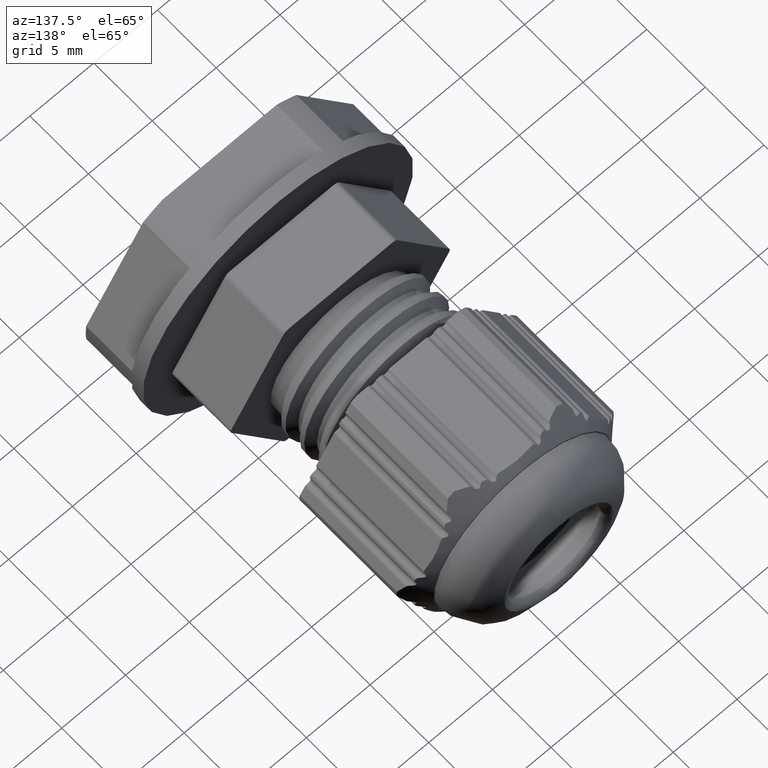
[diagram: clean part render]
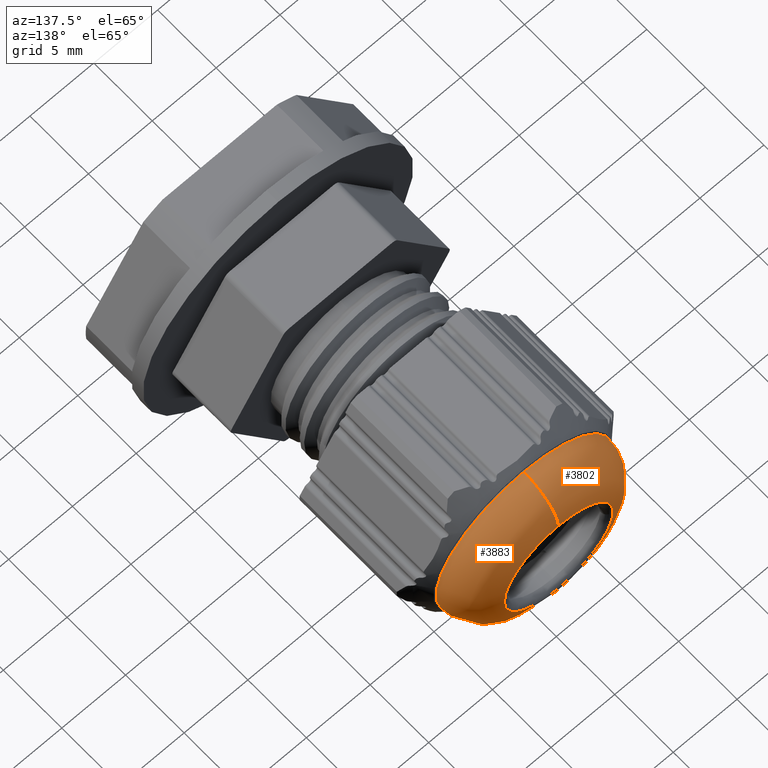
[diagram: same view with one multi-face feature highlighted, each face labeled with its STEP entity id]
A machine part, auxiliary view. The highlighted faces form ONE feature: a constant-radius fillet chain: 2 tangent blend faces with common blend radius 3 mm. The faces share edges in the B-rep.
Their STEP definitions:
[1] entity #3883 (Torus):
#235 = CIRCLE ( 'NONE', #257, 3.000000000000001800 ) ;
#242 = CIRCLE ( 'NONE', #272, 4.259999999999999800 ) ;
#251 = CIRCLE ( 'NONE', #289, 6.899999999999999500 ) ;
#255 = CIRCLE ( 'NONE', #270, 3.000000000000002700 ) ;
#257 = AXIS2_PLACEMENT_3D ( 'NONE', #5731, #5732, #5733 ) ;
#270 = AXIS2_PLACEMENT_3D ( 'NONE', #5757, #5758, #5793 ) ;
#272 = AXIS2_PLACEMENT_3D ( 'NONE', #5850, #5852, #5868 ) ;
#289 = AXIS2_PLACEMENT_3D ( 'NONE', #5933, #5901, #5931 ) ;
#328 = CIRCLE ( 'NONE', #335, 4.259999999999999800 ) ;
#335 = AXIS2_PLACEMENT_3D ( 'NONE', #5995, #5986, #6017 ) ;
#2836 = CARTESIAN_POINT ( 'NONE',  ( 4.260000000000008700, 15.21172793851808600, 5.216995364367735300E-016 ) ) ;
#2852 = CARTESIAN_POINT ( 'NONE',  ( 4.328130666425425800E-016, 15.21172793851808800, -4.259999999999999800 ) ) ;
#2903 = CARTESIAN_POINT ( 'NONE',  ( 8.450062914116735700E-016, 12.23340626348027100, -6.899999999999998600 ) ) ;
#2933 = CARTESIAN_POINT ( 'NONE',  ( -2.505398472816797900E-016, 15.21172793851808800, 4.259999999999999800 ) ) ;
#2941 = CARTESIAN_POINT ( 'NONE',  ( -4.225031457058367800E-016, 12.23340626348027800, 6.900000000000001200 ) ) ;
#3166 = EDGE_CURVE ( 'NONE', #10098, #10057, #235, .T. ) ;
#3174 = EDGE_CURVE ( 'NONE', #10091, #10092, #255, .T. ) ;
#3184 = EDGE_CURVE ( 'NONE', #10027, #10057, #242, .T. ) ;
#3193 = EDGE_CURVE ( 'NONE', #10091, #10098, #251, .T. ) ;
#3213 = EDGE_CURVE ( 'NONE', #10092, #10027, #328, .T. ) ;
#3883 = ADVANCED_FACE ( 'NONE', ( #8768 ), #4769, .T. ) ;
#4419 = ORIENTED_EDGE ( 'NONE', *, *, #3213, .F. ) ;
#4440 = ORIENTED_EDGE ( 'NONE', *, *, #3166, .T. ) ;
#4444 = ORIENTED_EDGE ( 'NONE', *, *, #3184, .F. ) ;
#4449 = ORIENTED_EDGE ( 'NONE', *, *, #3174, .F. ) ;
#4474 = ORIENTED_EDGE ( 'NONE', *, *, #3193, .T. ) ;
#4762 = AXIS2_PLACEMENT_3D ( 'NONE', #8756, #8753, #8775 ) ;
#4769 = TOROIDAL_SURFACE ( 'NONE', #4762, 3.899999999999999000, 3.000000000000001800 ) ;
#5731 = CARTESIAN_POINT ( 'NONE',  ( 2.270724043857861700E-016, 12.23340626348027400, -3.899999999999997200 ) ) ;
#5732 = DIRECTION ( 'NONE',  ( 1.000000000000000000, 8.413677221055260200E-033, 1.224646799147353200E-016 ) ) ;
#5733 = DIRECTION ( 'NONE',  ( 1.224646799147353200E-016, 0.0000000000000000000, -1.000000000000000000 ) ) ;
#5757 = CARTESIAN_POINT ( 'NONE',  ( -2.505398472816814200E-016, 12.23340626348027800, 3.900000000000000800 ) ) ;
#5758 = DIRECTION ( 'NONE',  ( -1.000000000000000000, 4.145542024985482000E-032, -1.688114805490787400E-047 ) ) ;
#5793 = DIRECTION ( 'NONE',  ( -4.814824860968085300E-032, -1.000000000000000000, 0.0000000000000000000 ) ) ;
#5850 = CARTESIAN_POINT ( 'NONE',  ( 3.429237238039417500E-016, 15.21172793851808800, 2.727830770051924600E-032 ) ) ;
#5852 = DIRECTION ( 'NONE',  ( 2.344220913482172600E-016, 1.000000000000000000, 5.495371691207191400E-032 ) ) ;
#5868 = DIRECTION ( 'NONE',  ( -1.000000000000000000, 4.072120835626307800E-016, -1.254819112719340700E-047 ) ) ;
#5901 = DIRECTION ( 'NONE',  ( 0.0000000000000000000, 1.000000000000000000, -3.771137991253930100E-016 ) ) ;
#5931 = DIRECTION ( 'NONE',  ( 0.0000000000000000000, 5.028183988338571400E-016, 1.000000000000000000 ) ) ;
#5933 = CARTESIAN_POINT ( 'NONE',  ( -4.225031457058367800E-016, 12.23340626348027400, 1.301042606982605300E-015 ) ) ;
#5986 = DIRECTION ( 'NONE',  ( 2.344220913482172600E-016, 1.000000000000000000, 5.495371691207191400E-032 ) ) ;
#5995 = CARTESIAN_POINT ( 'NONE',  ( 3.429237238039417500E-016, 15.21172793851808800, 2.727830770051924600E-032 ) ) ;
#6017 = DIRECTION ( 'NONE',  ( -1.000000000000000000, 4.072120835626307800E-016, -1.254819112719340700E-047 ) ) ;
#8753 = DIRECTION ( 'NONE',  ( 4.145542024985482000E-032, 1.000000000000000000, -4.072120835626311700E-016 ) ) ;
#8756 = CARTESIAN_POINT ( 'NONE',  ( -2.505398472816814200E-016, 12.23340626348027600, 1.734723475976807100E-015 ) ) ;
#8768 = FACE_OUTER_BOUND ( 'NONE', #10395, .T. ) ;
#8775 = DIRECTION ( 'NONE',  ( -3.963399978108781400E-048, 4.072120835626311700E-016, 1.000000000000000000 ) ) ;
#10027 = VERTEX_POINT ( 'NONE', #2836 ) ;
#10057 = VERTEX_POINT ( 'NONE', #2852 ) ;
#10091 = VERTEX_POINT ( 'NONE', #2941 ) ;
#10092 = VERTEX_POINT ( 'NONE', #2933 ) ;
#10098 = VERTEX_POINT ( 'NONE', #2903 ) ;
#10395 = EDGE_LOOP ( 'NONE', ( #4474, #4440, #4444, #4419, #4449 ) ) ;
[2] entity #3802 (Torus):
#134 = TOROIDAL_SURFACE ( 'NONE', #150, 3.899999999999999000, 3.000000000000001800 ) ;
#150 = AXIS2_PLACEMENT_3D ( 'NONE', #10634, #10623, #10622 ) ;
#235 = CIRCLE ( 'NONE', #257, 3.000000000000001800 ) ;
#254 = AXIS2_PLACEMENT_3D ( 'NONE', #5693, #5694, #5703 ) ;
#255 = CIRCLE ( 'NONE', #270, 3.000000000000002700 ) ;
#257 = AXIS2_PLACEMENT_3D ( 'NONE', #5731, #5732, #5733 ) ;
#260 = CIRCLE ( 'NONE', #254, 4.259999999999999800 ) ;
#270 = AXIS2_PLACEMENT_3D ( 'NONE', #5757, #5758, #5793 ) ;
#673 = CIRCLE ( 'NONE', #721, 4.259999999999999800 ) ;
#676 = AXIS2_PLACEMENT_3D ( 'NONE', #1973, #1953, #2000 ) ;
#680 = CIRCLE ( 'NONE', #676, 6.899999999999999500 ) ;
#721 = AXIS2_PLACEMENT_3D ( 'NONE', #2468, #2436, #2426 ) ;
#852 = EDGE_LOOP ( 'NONE', ( #1468, #1424, #1478, #1506, #1467 ) ) ;
#1424 = ORIENTED_EDGE ( 'NONE', *, *, #3613, .T. ) ;
#1467 = ORIENTED_EDGE ( 'NONE', *, *, #3161, .F. ) ;
#1468 = ORIENTED_EDGE ( 'NONE', *, *, #3166, .F. ) ;
#1478 = ORIENTED_EDGE ( 'NONE', *, *, #3174, .T. ) ;
#1506 = ORIENTED_EDGE ( 'NONE', *, *, #3632, .F. ) ;
#1953 = DIRECTION ( 'NONE',  ( 0.0000000000000000000, 1.000000000000000000, -3.771137991253930100E-016 ) ) ;
#1973 = CARTESIAN_POINT ( 'NONE',  ( -4.225031457058367800E-016, 12.23340626348027400, 1.301042606982605300E-015 ) ) ;
#2000 = DIRECTION ( 'NONE',  ( 0.0000000000000000000, 5.028183988338571400E-016, 1.000000000000000000 ) ) ;
#2426 = DIRECTION ( 'NONE',  ( -1.000000000000000000, 4.072120835626307800E-016, -1.254819112719340700E-047 ) ) ;
#2436 = DIRECTION ( 'NONE',  ( 2.344220913482172600E-016, 1.000000000000000000, 5.495371691207191400E-032 ) ) ;
#2468 = CARTESIAN_POINT ( 'NONE',  ( 3.429237238039417500E-016, 15.21172793851808800, 2.727830770051924600E-032 ) ) ;
#2852 = CARTESIAN_POINT ( 'NONE',  ( 4.328130666425425800E-016, 15.21172793851808800, -4.259999999999999800 ) ) ;
#2884 = CARTESIAN_POINT ( 'NONE',  ( -4.260000000000000700, 15.21172793851809000, 2.727830770051913100E-032 ) ) ;
#2903 = CARTESIAN_POINT ( 'NONE',  ( 8.450062914116735700E-016, 12.23340626348027100, -6.899999999999998600 ) ) ;
#2933 = CARTESIAN_POINT ( 'NONE',  ( -2.505398472816797900E-016, 15.21172793851808800, 4.259999999999999800 ) ) ;
#2941 = CARTESIAN_POINT ( 'NONE',  ( -4.225031457058367800E-016, 12.23340626348027800, 6.900000000000001200 ) ) ;
#3161 = EDGE_CURVE ( 'NONE', #10057, #10054, #260, .T. ) ;
#3166 = EDGE_CURVE ( 'NONE', #10098, #10057, #235, .T. ) ;
#3174 = EDGE_CURVE ( 'NONE', #10091, #10092, #255, .T. ) ;
#3613 = EDGE_CURVE ( 'NONE', #10098, #10091, #680, .T. ) ;
#3632 = EDGE_CURVE ( 'NONE', #10054, #10092, #673, .T. ) ;
#3802 = ADVANCED_FACE ( 'NONE', ( #10630 ), #134, .T. ) ;
#5693 = CARTESIAN_POINT ( 'NONE',  ( 3.429237238039417500E-016, 15.21172793851808800, 2.727830770051924600E-032 ) ) ;
#5694 = DIRECTION ( 'NONE',  ( 2.344220913482172600E-016, 1.000000000000000000, 5.495371691207191400E-032 ) ) ;
#5703 = DIRECTION ( 'NONE',  ( -1.000000000000000000, 4.072120835626307800E-016, -1.254819112719340700E-047 ) ) ;
#5731 = CARTESIAN_POINT ( 'NONE',  ( 2.270724043857861700E-016, 12.23340626348027400, -3.899999999999997200 ) ) ;
#5732 = DIRECTION ( 'NONE',  ( 1.000000000000000000, 8.413677221055260200E-033, 1.224646799147353200E-016 ) ) ;
#5733 = DIRECTION ( 'NONE',  ( 1.224646799147353200E-016, 0.0000000000000000000, -1.000000000000000000 ) ) ;
#5757 = CARTESIAN_POINT ( 'NONE',  ( -2.505398472816814200E-016, 12.23340626348027800, 3.900000000000000800 ) ) ;
#5758 = DIRECTION ( 'NONE',  ( -1.000000000000000000, 4.145542024985482000E-032, -1.688114805490787400E-047 ) ) ;
#5793 = DIRECTION ( 'NONE',  ( -4.814824860968085300E-032, -1.000000000000000000, 0.0000000000000000000 ) ) ;
#10054 = VERTEX_POINT ( 'NONE', #2884 ) ;
#10057 = VERTEX_POINT ( 'NONE', #2852 ) ;
#10091 = VERTEX_POINT ( 'NONE', #2941 ) ;
#10092 = VERTEX_POINT ( 'NONE', #2933 ) ;
#10098 = VERTEX_POINT ( 'NONE', #2903 ) ;
#10622 = DIRECTION ( 'NONE',  ( -3.963399978108781400E-048, 4.072120835626311700E-016, 1.000000000000000000 ) ) ;
#10623 = DIRECTION ( 'NONE',  ( 4.145542024985482000E-032, 1.000000000000000000, -4.072120835626311700E-016 ) ) ;
#10630 = FACE_OUTER_BOUND ( 'NONE', #852, .T. ) ;
#10634 = CARTESIAN_POINT ( 'NONE',  ( -2.505398472816814200E-016, 12.23340626348027600, 1.734723475976807100E-015 ) ) ;